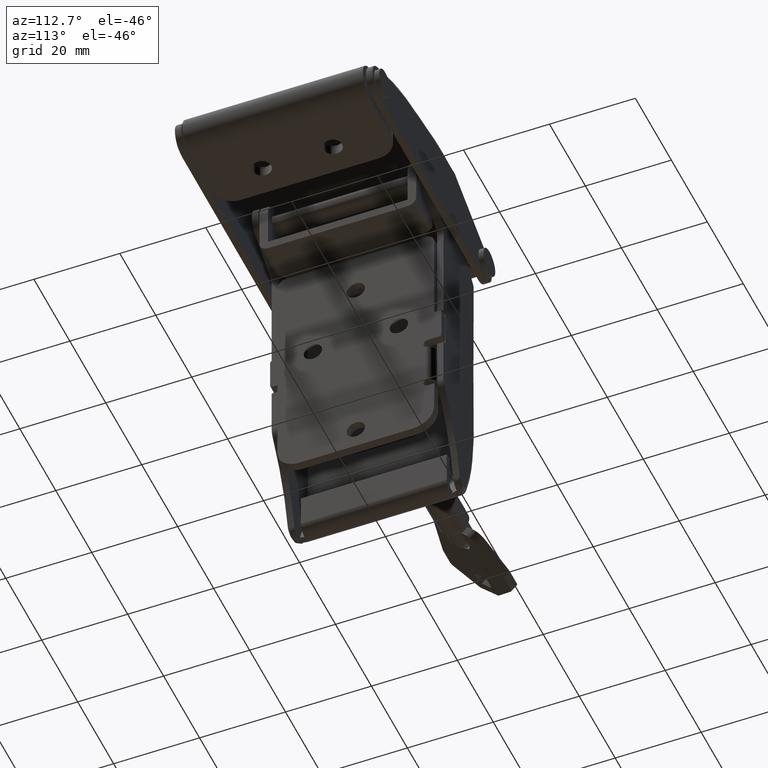
[diagram: clean part render]
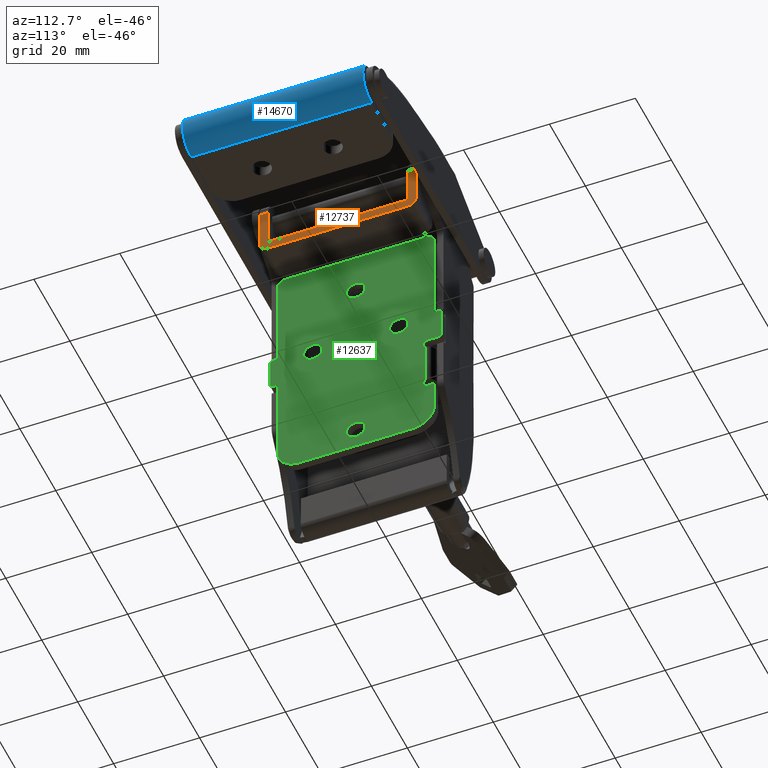
[diagram: same view with three faces highlighted in distinct colors, each labeled with its STEP entity id]
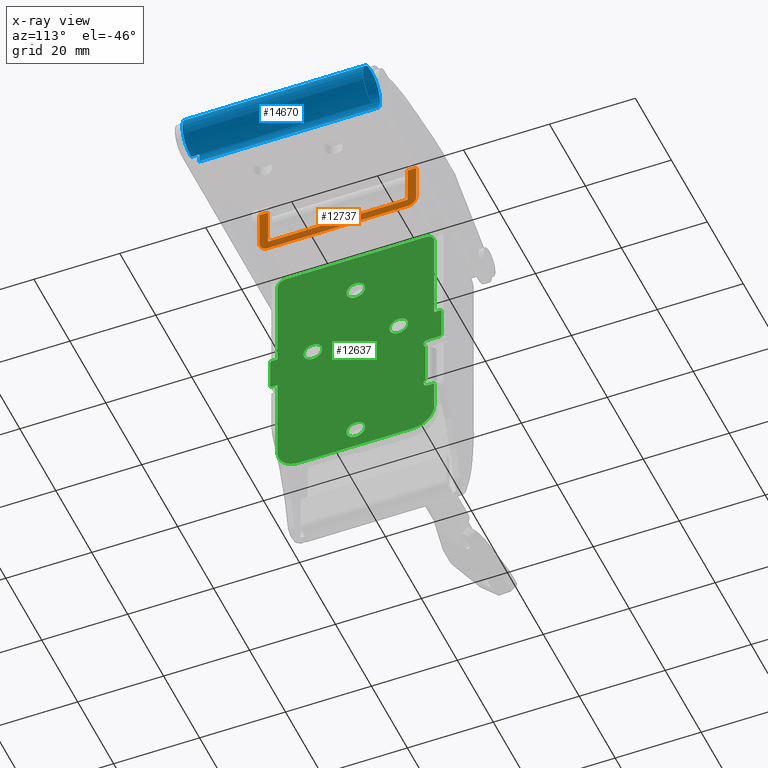
[diagram: x-ray of the same camera — body ghosted, the three highlighted faces saturated]
A machine part, auxiliary view with three faces highlighted in distinct colors.
The next image is the same camera in x-ray (body ghosted, the three faces saturated) — at least one of them is partly hidden behind the body in this view.
Their STEP definitions:

[orange] entity #12737 — the highlighted face is a freeform B-spline surface patch.
#11957=CARTESIAN_POINT('',(26.499776932377401,-16.250000000017501,6.200014666685920));
#11958=VERTEX_POINT('',#11957);
#11980=CARTESIAN_POINT('',(26.499776932377351,-16.249999999992099,-2.799992232691465));
#11981=VERTEX_POINT('',#11980);
#11982=CARTESIAN_POINT('',(26.499776932377401,-16.250000000017501,6.200014666685920));
#11983=CARTESIAN_POINT('',(26.499776932377351,-16.249999999992099,-2.799992232691465));
#11984=QUASI_UNIFORM_CURVE('',1,(#11982,#11983),.UNSPECIFIED.,.F.,.U.);
#11985=EDGE_CURVE('',#11958,#11981,#11984,.T.);
#12006=CARTESIAN_POINT('',(26.499776932377401,-18.250000000017501,6.200014666674630));
#12007=VERTEX_POINT('',#12006);
#12038=CARTESIAN_POINT('',(26.499776932377401,-18.249999999992099,-2.800006041319660));
#12039=VERTEX_POINT('',#12038);
#12045=CARTESIAN_POINT('',(26.499776932377401,-18.249999999992099,-2.800006041319660));
#12046=CARTESIAN_POINT('',(26.499776932377401,-18.250000000017501,6.200014666674630));
#12047=QUASI_UNIFORM_CURVE('',1,(#12045,#12046),.UNSPECIFIED.,.F.,.U.);
#12048=EDGE_CURVE('',#12039,#12007,#12047,.T.);
#12064=CARTESIAN_POINT('',(26.499776932377401,16.250000000007901,-4.800006041314020));
#12065=VERTEX_POINT('',#12064);
#12066=CARTESIAN_POINT('',(26.499776932377401,-16.249999999992099,-4.800006041314020));
#12067=VERTEX_POINT('',#12066);
#12068=CARTESIAN_POINT('',(26.499776932377401,16.250000000007901,-4.800006041314020));
#12069=CARTESIAN_POINT('',(26.499776932377401,-16.249999999992099,-4.800006041314020));
#12070=QUASI_UNIFORM_CURVE('',1,(#12068,#12069),.UNSPECIFIED.,.F.,.U.);
#12071=EDGE_CURVE('',#12065,#12067,#12070,.T.);
#12102=CARTESIAN_POINT('',(26.499776932377401,18.249999999982499,6.200014666777580));
#12103=VERTEX_POINT('',#12102);
#12125=CARTESIAN_POINT('',(26.499776932377401,18.250000000007901,-2.800006041308380));
#12126=VERTEX_POINT('',#12125);
#12127=CARTESIAN_POINT('',(26.499776932377401,18.249999999982499,6.200014666777580));
#12128=CARTESIAN_POINT('',(26.499776932377401,18.250000000007901,-2.800006041308380));
#12129=QUASI_UNIFORM_CURVE('',1,(#12127,#12128),.UNSPECIFIED.,.F.,.U.);
#12130=EDGE_CURVE('',#12103,#12126,#12129,.T.);
#12241=CARTESIAN_POINT('',(26.499776932377401,-16.250000000017501,6.200014666685920));
#12242=CARTESIAN_POINT('',(26.499776932377401,-18.250000000017501,6.200014666674630));
#12243=QUASI_UNIFORM_CURVE('',1,(#12241,#12242),.UNSPECIFIED.,.F.,.U.);
#12244=EDGE_CURVE('',#11958,#12007,#12243,.T.);
#12268=CARTESIAN_POINT('',(26.499776932377401,16.249999999982549,6.200014666777580));
#12269=VERTEX_POINT('',#12268);
#12292=CARTESIAN_POINT('',(26.499776932377401,18.249999999982499,6.200014666777580));
#12293=CARTESIAN_POINT('',(26.499776932377401,16.249999999982549,6.200014666777580));
#12294=QUASI_UNIFORM_CURVE('',1,(#12292,#12293),.UNSPECIFIED.,.F.,.U.);
#12295=EDGE_CURVE('',#12103,#12269,#12294,.T.);
#12315=CARTESIAN_POINT('',(26.499776932377401,16.250000000007901,-4.800006041314020));
#12316=CARTESIAN_POINT('',(26.499776932377330,16.495454468032509,-4.800205513452874));
#12317=CARTESIAN_POINT('',(26.499776932377340,16.937119388047890,-4.717648170550452));
#12318=CARTESIAN_POINT('',(26.499776932377340,17.527211696953440,-4.383386836669532));
#12319=CARTESIAN_POINT('',(26.499776932377380,17.906343755825759,-3.965100039951483));
#12320=CARTESIAN_POINT('',(26.499776932377319,18.179791323691092,-3.421637434309913));
#12321=CARTESIAN_POINT('',(26.499776932377340,18.250228573484758,-3.045479983403941));
#12322=CARTESIAN_POINT('',(26.499776932377401,18.250000000007901,-2.800006041308380));
#12323=B_SPLINE_CURVE_WITH_KNOTS('',3,(#12315,#12316,#12317,#12318,#12319,#12320,#12321,#12322),.UNSPECIFIED.,.F.,.U.,(4,1,1,1,1,4),(0.000000139750616,0.736326766771112,1.325416230115379,2.012616163606165,2.405344992653749,3.141671488682097),.UNSPECIFIED.);
#12324=EDGE_CURVE('',#12065,#12126,#12323,.T.);
#12346=CARTESIAN_POINT('',(26.499776932377351,-18.249999999992099,-2.800006041319660));
#12347=CARTESIAN_POINT('',(26.499776932377348,-18.249999999986457,-4.800006041314020));
#12348=CARTESIAN_POINT('',(26.499776932377351,-16.249999999992099,-4.800006041314020));
#12356=(BOUNDED_CURVE()B_SPLINE_CURVE(2,(#12346,#12347,#12348),.UNSPECIFIED.,.F.,.U.)CURVE()GEOMETRIC_REPRESENTATION_ITEM()QUASI_UNIFORM_CURVE()RATIONAL_B_SPLINE_CURVE((1.0,0.707106781187545,1.0))REPRESENTATION_ITEM(''));
#12357=EDGE_CURVE('',#12039,#12067,#12356,.T.);
#12710=CARTESIAN_POINT('',(26.499776932377401,-20.073174929274678,6.749465679826582));
#12711=CARTESIAN_POINT('',(26.499776932377401,20.073175908271370,6.749465679826582));
#12712=CARTESIAN_POINT('',(26.499776932377401,-20.073174929274678,-5.349457349406568));
#12713=CARTESIAN_POINT('',(26.499776932377401,20.073175908271370,-5.349457349406568));
#12714=B_SPLINE_SURFACE_WITH_KNOTS('',1,1,((#12710,#12712),(#12711,#12713)),.UNSPECIFIED.,.F.,.F.,.U.,(2,2),(2,2),(0.0,40.146350837546052),(0.0,12.098923029233150),.UNSPECIFIED.);
#12715=ORIENTED_EDGE('',*,*,#12130,.F.);
#12716=ORIENTED_EDGE('',*,*,#12295,.T.);
#12717=CARTESIAN_POINT('',(26.499776932377351,16.250000000007901,-2.799992232599805));
#12718=VERTEX_POINT('',#12717);
#12719=CARTESIAN_POINT('',(26.499776932377351,16.250000000007901,-2.799992232599805));
#12720=CARTESIAN_POINT('',(26.499776932377401,16.249999999982549,6.200014666777580));
#12721=QUASI_UNIFORM_CURVE('',1,(#12719,#12720),.UNSPECIFIED.,.F.,.U.);
#12722=EDGE_CURVE('',#12718,#12269,#12721,.T.);
#12723=ORIENTED_EDGE('',*,*,#12722,.F.);
#12724=CARTESIAN_POINT('',(26.499776932377351,-16.249999999992099,-2.799992232691465));
#12725=CARTESIAN_POINT('',(26.499776932377351,16.250000000007901,-2.799992232599805));
#12726=QUASI_UNIFORM_CURVE('',1,(#12724,#12725),.UNSPECIFIED.,.F.,.U.);
#12727=EDGE_CURVE('',#11981,#12718,#12726,.T.);
#12728=ORIENTED_EDGE('',*,*,#12727,.F.);
#12729=ORIENTED_EDGE('',*,*,#11985,.F.);
#12730=ORIENTED_EDGE('',*,*,#12244,.T.);
#12731=ORIENTED_EDGE('',*,*,#12048,.F.);
#12732=ORIENTED_EDGE('',*,*,#12357,.T.);
#12733=ORIENTED_EDGE('',*,*,#12071,.F.);
#12734=ORIENTED_EDGE('',*,*,#12324,.T.);
#12735=EDGE_LOOP('',(#12715,#12716,#12723,#12728,#12729,#12730,#12731,#12732,#12733,#12734));
#12736=FACE_OUTER_BOUND('',#12735,.T.);
#12737=ADVANCED_FACE('',(#12736),#12714,.F.);

[blue] entity #14670 — the highlighted face is a freeform B-spline surface patch.
#14483=CARTESIAN_POINT('',(57.999777542188099,20.999999999966501,-4.800000000000000));
#14484=VERTEX_POINT('',#14483);
#14491=CARTESIAN_POINT('',(53.786702655600102,20.999999999966501,-2.300000000000305));
#14492=VERTEX_POINT('',#14491);
#14498=CARTESIAN_POINT('',(57.999777542188099,20.999999999966501,-4.800000000000000));
#14499=CARTESIAN_POINT('',(58.488441247229922,20.999999999966430,-4.800259790680750));
#14500=CARTESIAN_POINT('',(59.221225385360661,20.999999999966668,-4.687066108495857));
#14501=CARTESIAN_POINT('',(60.130780935941623,20.999999999966381,-4.321866951769471));
#14502=CARTESIAN_POINT('',(60.805540346828323,20.999999999966320,-3.922476039716389));
#14503=CARTESIAN_POINT('',(61.554728215896887,20.999999999967049,-3.288545415266653));
#14504=CARTESIAN_POINT('',(62.241507695972743,20.999999999965581,-2.364942276297656));
#14505=CARTESIAN_POINT('',(62.637979728395543,20.999999999967478,-1.356361847156818));
#14506=CARTESIAN_POINT('',(62.792415254222277,20.999999999965919,-0.488230759714795));
#14507=CARTESIAN_POINT('',(62.818206189354832,20.999999999967041,0.409854823229037));
#14508=CARTESIAN_POINT('',(62.623963372544303,20.999999999966150,1.476793975174740));
#14509=CARTESIAN_POINT('',(62.148545977596392,20.999999999965869,2.487107106128572));
#14510=CARTESIAN_POINT('',(61.571956597516852,20.999999999967759,3.239938511728921));
#14511=CARTESIAN_POINT('',(60.890024904017473,20.999999999966018,3.874456724366127));
#14512=CARTESIAN_POINT('',(60.048493594247667,20.999999999965279,4.385492710382094));
#14513=CARTESIAN_POINT('',(59.163155615788810,20.999999999967208,4.680531977878813));
#14514=CARTESIAN_POINT('',(58.243673970889041,20.999999999966150,4.823138271551970));
#14515=CARTESIAN_POINT('',(57.374487896300643,20.999999999966661,4.793125169042311));
#14516=CARTESIAN_POINT('',(56.358067053799978,20.999999999967230,4.546372007525848));
#14517=CARTESIAN_POINT('',(55.527329772337907,20.999999999964182,4.153569760169432));
#14518=CARTESIAN_POINT('',(54.783215534406082,20.999999999967791,3.593244219305001));
#14519=CARTESIAN_POINT('',(54.277725428919162,20.999999999965901,3.058745677541966));
#14520=CARTESIAN_POINT('',(53.829089633709572,20.999999999966700,2.416712725435176));
#14521=CARTESIAN_POINT('',(53.428629869571573,20.999999999966409,1.592418424392871));
#14522=CARTESIAN_POINT('',(53.202079109261902,20.999999999966501,0.616744236194651));
#14523=CARTESIAN_POINT('',(53.189279920322051,20.999999999966590,-0.282384199321153));
#14524=CARTESIAN_POINT('',(53.322017300109898,20.999999999966349,-1.236286494171782));
#14525=CARTESIAN_POINT('',(53.560154528166763,20.999999999966811,-1.885503505337698));
#14526=CARTESIAN_POINT('',(53.786702655600102,20.999999999966501,-2.300000000000305));
#14527=B_SPLINE_CURVE_WITH_KNOTS('',3,(#14498,#14499,#14500,#14501,#14502,#14503,#14504,#14505,#14506,#14507,#14508,#14509,#14510,#14511,#14512,#14513,#14514,#14515,#14516,#14517,#14518,#14519,#14520,#14521,#14522,#14523,#14524,#14525,#14526),.UNSPECIFIED.,.F.,.U.,(4,1,1,1,1,1,1,1,1,1,1,1,1,1,1,1,1,1,1,1,1,1,1,1,1,1,4),(0.000000524812897,1.465886391824807,2.198849500608819,2.931814447163621,3.811367117099891,5.130713278527352,6.352233564327172,7.036329069591627,7.769275273883210,9.039758025547751,10.261375665538900,11.092070848956039,11.873905838504051,13.046530218020420,14.023814986310160,14.659055397362030,15.831806321512550,16.613644111493890,17.786392944965069,18.568217358955138,19.398793670355811,19.985186396339849,20.913595109809020,22.135212747623910,22.965911536351989,23.601150273834531,25.018159323101699),.UNSPECIFIED.);
#14528=EDGE_CURVE('',#14484,#14492,#14527,.T.);
#14599=CARTESIAN_POINT('',(57.957890171795910,-22.049999999992579,-4.799817230708021));
#14600=CARTESIAN_POINT('',(57.957890171795910,22.076249999965480,-4.799817230708021));
#14601=CARTESIAN_POINT('',(63.746146530018088,-22.049999999992572,-4.850330578685241));
#14602=CARTESIAN_POINT('',(63.746146530018088,22.076249999965480,-4.850330578685241));
#14603=CARTESIAN_POINT('',(62.724410174821358,-22.049999999992579,0.847258217225942));
#14604=CARTESIAN_POINT('',(62.724410174821358,22.076249999965480,0.847258217225942));
#14605=CARTESIAN_POINT('',(61.702673819624636,-22.049999999992572,6.544847013137116));
#14606=CARTESIAN_POINT('',(61.702673819624636,22.076249999965480,6.544847013137116));
#14607=CARTESIAN_POINT('',(56.292653885476710,-22.049999999992579,4.486170841675140));
#14608=CARTESIAN_POINT('',(56.292653885476710,22.076249999965480,4.486170841675140));
#14609=CARTESIAN_POINT('',(50.882633951328792,-22.049999999992572,2.427494670213159));
#14610=CARTESIAN_POINT('',(50.882633951328792,22.076249999965480,2.427494670213159));
#14611=CARTESIAN_POINT('',(53.907104753288472,-22.049999999992579,-2.507993110636541));
#14612=CARTESIAN_POINT('',(53.907104753288472,22.076249999965480,-2.507993110636541));
#14620=(BOUNDED_SURFACE()B_SPLINE_SURFACE(1,2,((#14599,#14601,#14603,#14605,#14607,#14609,#14611),(#14600,#14602,#14604,#14606,#14608,#14610,#14612)),.UNSPECIFIED.,.F.,.F.,.U.)B_SPLINE_SURFACE_WITH_KNOTS((2,2),(3,2,2,3),(0.0,44.126249999958070),(0.0,9.021194419456636,18.042388838913269,27.063583258369910),.UNSPECIFIED.)GEOMETRIC_REPRESENTATION_ITEM()RATIONAL_B_SPLINE_SURFACE(((1.0,0.638320090924328,1.0,0.638320090924328,1.0,0.638320090924328,1.0),(1.0,0.638320090924328,1.0,0.638320090924328,1.0,0.638320090924328,1.0)))REPRESENTATION_ITEM('')SURFACE());
#14621=CARTESIAN_POINT('',(53.786700400229698,-20.999999999953499,-2.299995868790350));
#14622=VERTEX_POINT('',#14621);
#14623=CARTESIAN_POINT('',(53.786700400229698,-20.999999999953499,-2.299995868790350));
#14624=CARTESIAN_POINT('',(53.786702655600102,20.999999999966501,-2.300000000000305));
#14625=QUASI_UNIFORM_CURVE('',1,(#14623,#14624),.UNSPECIFIED.,.F.,.U.);
#14626=EDGE_CURVE('',#14622,#14492,#14625,.T.);
#14627=ORIENTED_EDGE('',*,*,#14626,.F.);
#14628=CARTESIAN_POINT('',(57.999777542188099,-20.999999999939401,-4.800000000000000));
#14629=VERTEX_POINT('',#14628);
#14630=CARTESIAN_POINT('',(57.999777542188099,-20.999999999939401,-4.800000000000000));
#14631=CARTESIAN_POINT('',(58.276656849146157,-20.999999999939391,-4.800012719518666));
#14632=CARTESIAN_POINT('',(58.895591434198899,-20.999999999939771,-4.746343417655633));
#14633=CARTESIAN_POINT('',(59.729968058398363,-20.999999999941029,-4.506456376371203));
#14634=CARTESIAN_POINT('',(60.621493229074929,-20.999999999943491,-4.061266354696490));
#14635=CARTESIAN_POINT('',(61.344077479212537,-20.999999999947040,-3.492610666930328));
#14636=CARTESIAN_POINT('',(61.940761621136758,-20.999999999950418,-2.777258984338680));
#14637=CARTESIAN_POINT('',(62.347258484470117,-20.999999999955140,-2.087352179235546));
#14638=CARTESIAN_POINT('',(62.691210986564990,-20.999999999959261,-1.186176836090974));
#14639=CARTESIAN_POINT('',(62.850963923744857,-20.999999999966139,-0.096977482799562));
#14640=CARTESIAN_POINT('',(62.731403516853099,-20.999999999972118,0.995929544976656));
#14641=CARTESIAN_POINT('',(62.389380188633780,-20.999999999977980,2.036588497675843));
#14642=CARTESIAN_POINT('',(61.860382030123830,-20.999999999983039,2.926333447546984));
#14643=CARTESIAN_POINT('',(61.164609470554858,-20.999999999987089,3.642864101141921));
#14644=CARTESIAN_POINT('',(60.407927971969102,-20.999999999989679,4.185466128600929));
#14645=CARTESIAN_POINT('',(59.634596650246671,-20.999999999992369,4.543638888107298));
#14646=CARTESIAN_POINT('',(58.747230528473473,-20.999999999993129,4.765863574440225));
#14647=CARTESIAN_POINT('',(57.767944168889002,-20.999999999993548,4.836965346751175));
#14648=CARTESIAN_POINT('',(56.680552378922947,-20.999999999994031,4.665208205787446));
#14649=CARTESIAN_POINT('',(55.669525117969549,-20.999999999988130,4.236445110399850));
#14650=CARTESIAN_POINT('',(54.985367714083132,-20.999999999984841,3.758538015630997));
#14651=CARTESIAN_POINT('',(54.392778712634957,-20.999999999985651,3.198375405404606));
#14652=CARTESIAN_POINT('',(53.933353024956091,-20.999999999980819,2.601157354603931));
#14653=CARTESIAN_POINT('',(53.539366379368737,-20.999999999976879,1.830195750345745));
#14654=CARTESIAN_POINT('',(53.280315895940468,-20.999999999972271,1.020472153733905));
#14655=CARTESIAN_POINT('',(53.173382124089940,-20.999999999967251,0.142859100092282));
#14656=CARTESIAN_POINT('',(53.251041066919122,-20.999999999961020,-1.015363899543619));
#14657=CARTESIAN_POINT('',(53.520985495483082,-20.999999999956000,-1.814052290256780));
#14658=CARTESIAN_POINT('',(53.786700400229698,-20.999999999953499,-2.299995868790350));
#14659=B_SPLINE_CURVE_WITH_KNOTS('',3,(#14630,#14631,#14632,#14633,#14634,#14635,#14636,#14637,#14638,#14639,#14640,#14641,#14642,#14643,#14644,#14645,#14646,#14647,#14648,#14649,#14650,#14651,#14652,#14653,#14654,#14655,#14656,#14657,#14658),.UNSPECIFIED.,.F.,.U.,(4,1,1,1,1,1,1,1,1,1,1,1,1,1,1,1,1,1,1,1,1,1,1,1,1,1,4),(0.000000522990046,0.830646403101451,1.856788364116760,2.589759640581413,3.811366398473624,4.593209124701325,5.375041882819112,6.205731624476215,7.476105563690126,8.648849370826099,9.479536146331677,10.750003624029590,11.727288807107470,12.460272562617790,13.535203398016300,14.268151463677240,15.196566734314990,16.467029376999971,17.542049524029181,18.470492016324570,18.959018294966501,19.985182635954899,20.718137133023330,21.548833395938459,22.526119120207639,23.356800590405179,25.018154616127781),.UNSPECIFIED.);
#14660=EDGE_CURVE('',#14629,#14622,#14659,.T.);
#14661=ORIENTED_EDGE('',*,*,#14660,.F.);
#14662=CARTESIAN_POINT('',(57.999777542188099,-20.999999999939401,-4.800000000000000));
#14663=CARTESIAN_POINT('',(57.999777542188099,20.999999999966501,-4.800000000000000));
#14664=QUASI_UNIFORM_CURVE('',1,(#14662,#14663),.UNSPECIFIED.,.F.,.U.);
#14665=EDGE_CURVE('',#14629,#14484,#14664,.T.);
#14666=ORIENTED_EDGE('',*,*,#14665,.T.);
#14667=ORIENTED_EDGE('',*,*,#14528,.T.);
#14668=EDGE_LOOP('',(#14627,#14661,#14666,#14667));
#14669=FACE_OUTER_BOUND('',#14668,.T.);
#14670=ADVANCED_FACE('',(#14669),#14620,.T.);

[green] entity #12637 — the highlighted face is a freeform B-spline surface patch.
#10949=CARTESIAN_POINT('',(16.499774046851549,1.630269E-010,-59.949992232788098));
#10950=VERTEX_POINT('',#10949);
#10951=CARTESIAN_POINT('',(16.499774046851559,2.143372267680425,-57.968679288715123));
#10952=VERTEX_POINT('',#10951);
#10953=CARTESIAN_POINT('',(16.499774046851549,1.630269E-010,-59.949992232788098));
#10954=CARTESIAN_POINT('',(16.499774046851545,1.987439557123854,-59.949992232788091));
#10955=CARTESIAN_POINT('',(16.499774046851552,2.143372267680425,-57.968679288715116));
#10963=(BOUNDED_CURVE()B_SPLINE_CURVE(2,(#10953,#10954,#10955),.UNSPECIFIED.,.F.,.U.)B_SPLINE_CURVE_WITH_KNOTS((3,3),(0.0,0.236331300623797),.UNSPECIFIED.)CURVE()GEOMETRIC_REPRESENTATION_ITEM()RATIONAL_B_SPLINE_CURVE((1.0,0.723120658615706,0.969723356153096))REPRESENTATION_ITEM(''));
#10964=EDGE_CURVE('',#10950,#10952,#10963,.T.);
#11005=CARTESIAN_POINT('',(16.499774046851549,-2.143372267354371,-57.631305176861062));
#11006=VERTEX_POINT('',#11005);
#11012=CARTESIAN_POINT('',(16.499774046851549,-2.143372267354372,-57.631305176861062));
#11013=CARTESIAN_POINT('',(16.499774046851556,-2.149999999836974,-57.715518502665269));
#11014=CARTESIAN_POINT('',(16.499774046851549,-2.149999999836973,-57.799992232788092));
#11015=CARTESIAN_POINT('',(16.499774046851559,-2.149999999836973,-59.949992232788091));
#11016=CARTESIAN_POINT('',(16.499774046851549,1.630269E-010,-59.949992232788098));
#11024=(BOUNDED_CURVE()B_SPLINE_CURVE(2,(#11012,#11013,#11014,#11015,#11016),.UNSPECIFIED.,.F.,.U.)B_SPLINE_CURVE_WITH_KNOTS((3,2,3),(0.736331300623796,0.750000000000000,1.0),.UNSPECIFIED.)CURVE()GEOMETRIC_REPRESENTATION_ITEM()RATIONAL_B_SPLINE_CURVE((0.969723356153094,0.983986122570841,1.0,0.707106781186547,1.0))REPRESENTATION_ITEM(''));
#11025=EDGE_CURVE('',#11006,#10950,#11024,.T.);
#11048=CARTESIAN_POINT('',(16.499774046851549,1.630269E-010,-55.649992232788087));
#11049=VERTEX_POINT('',#11048);
#11050=CARTESIAN_POINT('',(16.499774046851552,2.143372267680426,-57.968679288715109));
#11051=CARTESIAN_POINT('',(16.499774046851559,2.150000000163027,-57.884465962910923));
#11052=CARTESIAN_POINT('',(16.499774046851549,2.150000000163027,-57.799992232788092));
#11053=CARTESIAN_POINT('',(16.499774046851559,2.150000000163026,-55.649992232788094));
#11054=CARTESIAN_POINT('',(16.499774046851549,1.630269E-010,-55.649992232788087));
#11062=(BOUNDED_CURVE()B_SPLINE_CURVE(2,(#11050,#11051,#11052,#11053,#11054),.UNSPECIFIED.,.F.,.U.)B_SPLINE_CURVE_WITH_KNOTS((3,2,3),(0.236331300623797,0.250000000000000,0.500000000000000),.UNSPECIFIED.)CURVE()GEOMETRIC_REPRESENTATION_ITEM()RATIONAL_B_SPLINE_CURVE((0.969723356153097,0.983986122570842,1.0,0.707106781186547,1.0))REPRESENTATION_ITEM(''));
#11063=EDGE_CURVE('',#10952,#11049,#11062,.T.);
#11065=CARTESIAN_POINT('',(16.499774046851549,1.630269E-010,-55.649992232788087));
#11066=CARTESIAN_POINT('',(16.499774046851549,-1.987439556797797,-55.649992232788094));
#11067=CARTESIAN_POINT('',(16.499774046851556,-2.143372267354371,-57.631305176861062));
#11075=(BOUNDED_CURVE()B_SPLINE_CURVE(2,(#11065,#11066,#11067),.UNSPECIFIED.,.F.,.U.)B_SPLINE_CURVE_WITH_KNOTS((3,3),(0.500000000000000,0.736331300623796),.UNSPECIFIED.)CURVE()GEOMETRIC_REPRESENTATION_ITEM()RATIONAL_B_SPLINE_CURVE((1.0,0.723120658615706,0.969723356153095))REPRESENTATION_ITEM(''));
#11076=EDGE_CURVE('',#11049,#11006,#11075,.T.);
#11131=CARTESIAN_POINT('',(16.499774046851549,1.125784E-010,-16.949992232788599));
#11132=VERTEX_POINT('',#11131);
#11133=CARTESIAN_POINT('',(16.499774046851549,2.143372267629977,-14.968679288715620));
#11134=VERTEX_POINT('',#11133);
#11135=CARTESIAN_POINT('',(16.499774046851549,1.125784E-010,-16.949992232788599));
#11136=CARTESIAN_POINT('',(16.499774046851556,1.987439557073408,-16.949992232788606));
#11137=CARTESIAN_POINT('',(16.499774046851552,2.143372267629977,-14.968679288715620));
#11145=(BOUNDED_CURVE()B_SPLINE_CURVE(2,(#11135,#11136,#11137),.UNSPECIFIED.,.F.,.U.)B_SPLINE_CURVE_WITH_KNOTS((3,3),(0.0,0.236331300623797),.UNSPECIFIED.)CURVE()GEOMETRIC_REPRESENTATION_ITEM()RATIONAL_B_SPLINE_CURVE((1.0,0.723120658615706,0.969723356153096))REPRESENTATION_ITEM(''));
#11146=EDGE_CURVE('',#11132,#11134,#11145,.T.);
#11187=CARTESIAN_POINT('',(16.499774046851549,-2.143372267404820,-14.631305176861581));
#11188=VERTEX_POINT('',#11187);
#11194=CARTESIAN_POINT('',(16.499774046851549,-2.143372267404820,-14.631305176861588));
#11195=CARTESIAN_POINT('',(16.499774046851549,-2.149999999887422,-14.715518502665775));
#11196=CARTESIAN_POINT('',(16.499774046851549,-2.149999999887422,-14.799992232788600));
#11197=CARTESIAN_POINT('',(16.499774046851559,-2.149999999887422,-16.949992232788603));
#11198=CARTESIAN_POINT('',(16.499774046851549,1.125784E-010,-16.949992232788599));
#11206=(BOUNDED_CURVE()B_SPLINE_CURVE(2,(#11194,#11195,#11196,#11197,#11198),.UNSPECIFIED.,.F.,.U.)B_SPLINE_CURVE_WITH_KNOTS((3,2,3),(0.736331300623797,0.750000000000000,1.0),.UNSPECIFIED.)CURVE()GEOMETRIC_REPRESENTATION_ITEM()RATIONAL_B_SPLINE_CURVE((0.969723356153096,0.983986122570842,1.0,0.707106781186547,1.0))REPRESENTATION_ITEM(''));
#11207=EDGE_CURVE('',#11188,#11132,#11206,.T.);
#11230=CARTESIAN_POINT('',(16.499774046851549,1.125784E-010,-12.649992232788600));
#11231=VERTEX_POINT('',#11230);
#11232=CARTESIAN_POINT('',(16.499774046851552,2.143372267629977,-14.968679288715620));
#11233=CARTESIAN_POINT('',(16.499774046851552,2.150000000112579,-14.884465962911428));
#11234=CARTESIAN_POINT('',(16.499774046851549,2.150000000112578,-14.799992232788600));
#11235=CARTESIAN_POINT('',(16.499774046851559,2.150000000112578,-12.649992232788597));
#11236=CARTESIAN_POINT('',(16.499774046851549,1.125784E-010,-12.649992232788600));
#11244=(BOUNDED_CURVE()B_SPLINE_CURVE(2,(#11232,#11233,#11234,#11235,#11236),.UNSPECIFIED.,.F.,.U.)B_SPLINE_CURVE_WITH_KNOTS((3,2,3),(0.236331300623797,0.250000000000000,0.500000000000000),.UNSPECIFIED.)CURVE()GEOMETRIC_REPRESENTATION_ITEM()RATIONAL_B_SPLINE_CURVE((0.969723356153096,0.983986122570842,1.0,0.707106781186547,1.0))REPRESENTATION_ITEM(''));
#11245=EDGE_CURVE('',#11134,#11231,#11244,.T.);
#11247=CARTESIAN_POINT('',(16.499774046851549,1.125784E-010,-12.649992232788600));
#11248=CARTESIAN_POINT('',(16.499774046851556,-1.987439556848252,-12.649992232788598));
#11249=CARTESIAN_POINT('',(16.499774046851552,-2.143372267404820,-14.631305176861579));
#11257=(BOUNDED_CURVE()B_SPLINE_CURVE(2,(#11247,#11248,#11249),.UNSPECIFIED.,.F.,.U.)B_SPLINE_CURVE_WITH_KNOTS((3,3),(0.500000000000000,0.736331300623797),.UNSPECIFIED.)CURVE()GEOMETRIC_REPRESENTATION_ITEM()RATIONAL_B_SPLINE_CURVE((1.0,0.723120658615706,0.969723356153096))REPRESENTATION_ITEM(''));
#11258=EDGE_CURVE('',#11231,#11188,#11257,.T.);
#11316=CARTESIAN_POINT('',(16.499774046851549,7.856627732566642,-29.631305176661929));
#11317=VERTEX_POINT('',#11316);
#11323=CARTESIAN_POINT('',(16.499774046851549,10.000000000084039,-31.949992232588951));
#11324=VERTEX_POINT('',#11323);
#11325=CARTESIAN_POINT('',(16.499774046851556,7.856627732566643,-29.631305176661932));
#11326=CARTESIAN_POINT('',(16.499774046851549,7.850000000084041,-29.715518502466125));
#11327=CARTESIAN_POINT('',(16.499774046851549,7.850000000084040,-29.799992232588949));
#11328=CARTESIAN_POINT('',(16.499774046851559,7.850000000084041,-31.949992232588958));
#11329=CARTESIAN_POINT('',(16.499774046851549,10.000000000084039,-31.949992232588951));
#11337=(BOUNDED_CURVE()B_SPLINE_CURVE(2,(#11325,#11326,#11327,#11328,#11329),.UNSPECIFIED.,.F.,.U.)B_SPLINE_CURVE_WITH_KNOTS((3,2,3),(0.736331300623797,0.750000000000000,1.0),.UNSPECIFIED.)CURVE()GEOMETRIC_REPRESENTATION_ITEM()RATIONAL_B_SPLINE_CURVE((0.969723356153096,0.983986122570842,1.0,0.707106781186547,1.0))REPRESENTATION_ITEM(''));
#11338=EDGE_CURVE('',#11317,#11324,#11337,.T.);
#11340=CARTESIAN_POINT('',(16.499774046851549,12.143372267601441,-29.968679288515968));
#11341=VERTEX_POINT('',#11340);
#11342=CARTESIAN_POINT('',(16.499774046851549,10.000000000084039,-31.949992232588951));
#11343=CARTESIAN_POINT('',(16.499774046851556,11.987439557044871,-31.949992232588954));
#11344=CARTESIAN_POINT('',(16.499774046851552,12.143372267601439,-29.968679288515965));
#11352=(BOUNDED_CURVE()B_SPLINE_CURVE(2,(#11342,#11343,#11344),.UNSPECIFIED.,.F.,.U.)B_SPLINE_CURVE_WITH_KNOTS((3,3),(0.0,0.236331300623797),.UNSPECIFIED.)CURVE()GEOMETRIC_REPRESENTATION_ITEM()RATIONAL_B_SPLINE_CURVE((1.0,0.723120658615706,0.969723356153096))REPRESENTATION_ITEM(''));
#11353=EDGE_CURVE('',#11324,#11341,#11352,.T.);
#11383=CARTESIAN_POINT('',(16.499774046851549,10.000000000084039,-27.649992232588950));
#11384=VERTEX_POINT('',#11383);
#11385=CARTESIAN_POINT('',(16.499774046851552,12.143372267601434,-29.968679288515965));
#11386=CARTESIAN_POINT('',(16.499774046851556,12.150000000084038,-29.884465962711779));
#11387=CARTESIAN_POINT('',(16.499774046851549,12.150000000084040,-29.799992232588949));
#11388=CARTESIAN_POINT('',(16.499774046851559,12.150000000084042,-27.649992232588946));
#11389=CARTESIAN_POINT('',(16.499774046851549,10.000000000084039,-27.649992232588950));
#11397=(BOUNDED_CURVE()B_SPLINE_CURVE(2,(#11385,#11386,#11387,#11388,#11389),.UNSPECIFIED.,.F.,.U.)B_SPLINE_CURVE_WITH_KNOTS((3,2,3),(0.236331300623797,0.250000000000000,0.500000000000000),.UNSPECIFIED.)CURVE()GEOMETRIC_REPRESENTATION_ITEM()RATIONAL_B_SPLINE_CURVE((0.969723356153096,0.983986122570842,1.0,0.707106781186547,1.0))REPRESENTATION_ITEM(''));
#11398=EDGE_CURVE('',#11341,#11384,#11397,.T.);
#11400=CARTESIAN_POINT('',(16.499774046851549,10.000000000084039,-27.649992232588950));
#11401=CARTESIAN_POINT('',(16.499774046851552,8.012560443123208,-27.649992232588954));
#11402=CARTESIAN_POINT('',(16.499774046851545,7.856627732566642,-29.631305176661936));
#11410=(BOUNDED_CURVE()B_SPLINE_CURVE(2,(#11400,#11401,#11402),.UNSPECIFIED.,.F.,.U.)B_SPLINE_CURVE_WITH_KNOTS((3,3),(0.500000000000000,0.736331300623797),.UNSPECIFIED.)CURVE()GEOMETRIC_REPRESENTATION_ITEM()RATIONAL_B_SPLINE_CURVE((1.0,0.723120658615705,0.969723356153097))REPRESENTATION_ITEM(''));
#11411=EDGE_CURVE('',#11384,#11317,#11410,.T.);
#11440=CARTESIAN_POINT('',(16.499774046851559,-12.143372267433360,-29.631305176718332));
#11441=VERTEX_POINT('',#11440);
#11447=CARTESIAN_POINT('',(16.499774046851549,-9.999999999915961,-31.949992232645350));
#11448=VERTEX_POINT('',#11447);
#11449=CARTESIAN_POINT('',(16.499774046851556,-12.143372267433358,-29.631305176718332));
#11450=CARTESIAN_POINT('',(16.499774046851552,-12.149999999915961,-29.715518502522524));
#11451=CARTESIAN_POINT('',(16.499774046851549,-12.149999999915959,-29.799992232645351));
#11452=CARTESIAN_POINT('',(16.499774046851559,-12.149999999915961,-31.949992232645357));
#11453=CARTESIAN_POINT('',(16.499774046851549,-9.999999999915961,-31.949992232645350));
#11461=(BOUNDED_CURVE()B_SPLINE_CURVE(2,(#11449,#11450,#11451,#11452,#11453),.UNSPECIFIED.,.F.,.U.)B_SPLINE_CURVE_WITH_KNOTS((3,2,3),(0.736331300623797,0.750000000000000,1.0),.UNSPECIFIED.)CURVE()GEOMETRIC_REPRESENTATION_ITEM()RATIONAL_B_SPLINE_CURVE((0.969723356153095,0.983986122570842,1.0,0.707106781186547,1.0))REPRESENTATION_ITEM(''));
#11462=EDGE_CURVE('',#11441,#11448,#11461,.T.);
#11464=CARTESIAN_POINT('',(16.499774046851549,-7.856627732398561,-29.968679288572371));
#11465=VERTEX_POINT('',#11464);
#11466=CARTESIAN_POINT('',(16.499774046851549,-9.999999999915961,-31.949992232645350));
#11467=CARTESIAN_POINT('',(16.499774046851556,-8.012560442955131,-31.949992232645350));
#11468=CARTESIAN_POINT('',(16.499774046851552,-7.856627732398560,-29.968679288572375));
#11476=(BOUNDED_CURVE()B_SPLINE_CURVE(2,(#11466,#11467,#11468),.UNSPECIFIED.,.F.,.U.)B_SPLINE_CURVE_WITH_KNOTS((3,3),(0.0,0.236331300623797),.UNSPECIFIED.)CURVE()GEOMETRIC_REPRESENTATION_ITEM()RATIONAL_B_SPLINE_CURVE((1.0,0.723120658615706,0.969723356153096))REPRESENTATION_ITEM(''));
#11477=EDGE_CURVE('',#11448,#11465,#11476,.T.);
#11507=CARTESIAN_POINT('',(16.499774046851549,-9.999999999915961,-27.649992232645349));
#11508=VERTEX_POINT('',#11507);
#11509=CARTESIAN_POINT('',(16.499774046851549,-7.856627732398560,-29.968679288572368));
#11510=CARTESIAN_POINT('',(16.499774046851549,-7.849999999915958,-29.884465962768171));
#11511=CARTESIAN_POINT('',(16.499774046851549,-7.849999999915959,-29.799992232645351));
#11512=CARTESIAN_POINT('',(16.499774046851559,-7.849999999915960,-27.649992232645360));
#11513=CARTESIAN_POINT('',(16.499774046851549,-9.999999999915961,-27.649992232645349));
#11521=(BOUNDED_CURVE()B_SPLINE_CURVE(2,(#11509,#11510,#11511,#11512,#11513),.UNSPECIFIED.,.F.,.U.)B_SPLINE_CURVE_WITH_KNOTS((3,2,3),(0.236331300623797,0.250000000000000,0.500000000000000),.UNSPECIFIED.)CURVE()GEOMETRIC_REPRESENTATION_ITEM()RATIONAL_B_SPLINE_CURVE((0.969723356153096,0.983986122570842,1.0,0.707106781186547,1.0))REPRESENTATION_ITEM(''));
#11522=EDGE_CURVE('',#11465,#11508,#11521,.T.);
#11524=CARTESIAN_POINT('',(16.499774046851549,-9.999999999915961,-27.649992232645349));
#11525=CARTESIAN_POINT('',(16.499774046851552,-11.987439556876785,-27.649992232645364));
#11526=CARTESIAN_POINT('',(16.499774046851549,-12.143372267433360,-29.631305176718332));
#11534=(BOUNDED_CURVE()B_SPLINE_CURVE(2,(#11524,#11525,#11526),.UNSPECIFIED.,.F.,.U.)B_SPLINE_CURVE_WITH_KNOTS((3,3),(0.500000000000000,0.736331300623797),.UNSPECIFIED.)CURVE()GEOMETRIC_REPRESENTATION_ITEM()RATIONAL_B_SPLINE_CURVE((1.0,0.723120658615706,0.969723356153095))REPRESENTATION_ITEM(''));
#11535=EDGE_CURVE('',#11508,#11441,#11534,.T.);
#11914=CARTESIAN_POINT('',(16.499774046851599,-16.249999999788500,-4.799992232599810));
#11915=VERTEX_POINT('',#11914);
#11921=CARTESIAN_POINT('',(16.499774046851599,16.250000000211500,-4.799992232599810));
#11922=VERTEX_POINT('',#11921);
#11923=CARTESIAN_POINT('',(16.499774046851599,-16.249999999788500,-4.799992232599810));
#11924=CARTESIAN_POINT('',(16.499774046851599,16.250000000211500,-4.799992232599810));
#11925=QUASI_UNIFORM_CURVE('',1,(#11923,#11924),.UNSPECIFIED.,.F.,.U.);
#11926=EDGE_CURVE('',#11915,#11922,#11925,.T.);
#12365=CARTESIAN_POINT('',(16.499774046851599,-21.943004922477680,-65.697106618644000));
#12366=CARTESIAN_POINT('',(16.499774046851599,21.943005993098229,-65.697106618644000));
#12367=CARTESIAN_POINT('',(16.499774046851599,-21.943004922477680,-1.902890099588219));
#12368=CARTESIAN_POINT('',(16.499774046851599,21.943005993098229,-1.902890099588219));
#12369=B_SPLINE_SURFACE_WITH_KNOTS('',1,1,((#12365,#12367),(#12366,#12368)),.UNSPECIFIED.,.F.,.F.,.U.,(2,2),(2,2),(0.0,43.886010915575923),(0.0,63.794216519055780),.UNSPECIFIED.);
#12370=CARTESIAN_POINT('',(16.499774046851549,16.250000000152500,-48.933966829119903));
#12371=VERTEX_POINT('',#12370);
#12372=CARTESIAN_POINT('',(16.499774046851549,16.750000000146901,-50.799992232914903));
#12373=VERTEX_POINT('',#12372);
#12374=CARTESIAN_POINT('',(16.499774046851549,16.250000000152500,-48.933966829119903));
#12375=CARTESIAN_POINT('',(16.499774046851559,16.143647675286100,-48.995235487695588));
#12376=CARTESIAN_POINT('',(16.499774046851581,16.006803772084751,-49.112553335175733));
#12377=CARTESIAN_POINT('',(16.499774046851531,15.845194405741619,-49.350129795998463));
#12378=CARTESIAN_POINT('',(16.499774046851549,15.759501204350350,-49.583626787200998));
#12379=CARTESIAN_POINT('',(16.499774046851570,15.739739852572900,-49.885246510836510));
#12380=CARTESIAN_POINT('',(16.499774046851542,15.794215844220149,-50.127907055397841));
#12381=CARTESIAN_POINT('',(16.499774046851609,15.917260536636681,-50.372321952272202));
#12382=CARTESIAN_POINT('',(16.499774046851520,16.079705633124149,-50.560669201332082));
#12383=CARTESIAN_POINT('',(16.499774046851570,16.368417257349311,-50.746805232999698));
#12384=CARTESIAN_POINT('',(16.499774046851559,16.599961080855579,-50.800243950246319));
#12385=CARTESIAN_POINT('',(16.499774046851549,16.750000000146901,-50.799992232914903));
#12386=B_SPLINE_CURVE_WITH_KNOTS('',3,(#12374,#12375,#12376,#12377,#12378,#12379,#12380,#12381,#12382,#12383,#12384,#12385),.UNSPECIFIED.,.F.,.U.,(4,1,1,1,1,1,1,1,1,4),(0.000000562628284,0.368179991986540,0.531814585816853,0.859109741120983,1.104582043609020,1.431788850161771,1.595426706972322,1.922724903766724,2.168196092283113,2.618176292731659),.UNSPECIFIED.);
#12387=EDGE_CURVE('',#12371,#12373,#12386,.T.);
#12388=ORIENTED_EDGE('',*,*,#12387,.F.);
#12389=CARTESIAN_POINT('',(16.499774046851549,16.250000000183199,-38.666017636687947));
#12390=VERTEX_POINT('',#12389);
#12391=CARTESIAN_POINT('',(16.499774046851549,16.250000000152500,-48.933966829119903));
#12392=CARTESIAN_POINT('',(16.499774046851549,16.250000000183199,-38.666017636687947));
#12393=QUASI_UNIFORM_CURVE('',1,(#12391,#12392),.UNSPECIFIED.,.F.,.U.);
#12394=EDGE_CURVE('',#12371,#12390,#12393,.T.);
#12395=ORIENTED_EDGE('',*,*,#12394,.T.);
#12396=CARTESIAN_POINT('',(16.499774046851549,16.750000000188798,-36.799992232898802));
#12397=VERTEX_POINT('',#12396);
#12398=CARTESIAN_POINT('',(16.499774046851549,16.750000000188798,-36.799992232898802));
#12399=CARTESIAN_POINT('',(16.499774046851570,16.627260555809830,-36.799872855041052));
#12400=CARTESIAN_POINT('',(16.499774046851531,16.450094103785851,-36.833057252908063));
#12401=CARTESIAN_POINT('',(16.499774046851570,16.191345738555690,-36.957996305106633));
#12402=CARTESIAN_POINT('',(16.499774046851549,16.000385919659230,-37.117364826966103));
#12403=CARTESIAN_POINT('',(16.499774046851520,15.832466493330919,-37.368693820451000));
#12404=CARTESIAN_POINT('',(16.499774046851591,15.741785461687121,-37.658851896080471));
#12405=CARTESIAN_POINT('',(16.499774046851549,15.749303175714010,-37.962778811310798));
#12406=CARTESIAN_POINT('',(16.499774046851570,15.837576677934120,-38.237472843462257));
#12407=CARTESIAN_POINT('',(16.499774046851471,15.995342026428720,-38.479965362110207));
#12408=CARTESIAN_POINT('',(16.499774046851648,16.155500596187430,-38.611533125385861));
#12409=CARTESIAN_POINT('',(16.499774046851549,16.250000000183199,-38.666017636687947));
#12410=B_SPLINE_CURVE_WITH_KNOTS('',3,(#12398,#12399,#12400,#12401,#12402,#12403,#12404,#12405,#12406,#12407,#12408,#12409),.UNSPECIFIED.,.F.,.U.,(4,1,1,1,1,1,1,1,1,4),(0.000000562636937,0.368179991992776,0.531814585821995,0.859109741124140,1.104582043610653,1.431788850161185,1.759078268835571,2.004547324339844,2.290936216713408,2.618176292727617),.UNSPECIFIED.);
#12411=EDGE_CURVE('',#12397,#12390,#12410,.T.);
#12412=ORIENTED_EDGE('',*,*,#12411,.F.);
#12413=CARTESIAN_POINT('',(16.499774046851549,19.450000000227249,-36.799992232903001));
#12414=VERTEX_POINT('',#12413);
#12415=CARTESIAN_POINT('',(16.499774046851549,19.450000000227249,-36.799992232903001));
#12416=CARTESIAN_POINT('',(16.499774046851549,16.750000000188798,-36.799992232898802));
#12417=QUASI_UNIFORM_CURVE('',1,(#12415,#12416),.UNSPECIFIED.,.F.,.U.);
#12418=EDGE_CURVE('',#12414,#12397,#12417,.T.);
#12419=ORIENTED_EDGE('',*,*,#12418,.F.);
#12420=CARTESIAN_POINT('',(16.499774046851549,19.950000000228751,-36.299992232903151));
#12421=VERTEX_POINT('',#12420);
#12422=CARTESIAN_POINT('',(16.499774046851549,19.450000000227249,-36.799992232903001));
#12423=CARTESIAN_POINT('',(16.499774046851556,19.950000000228599,-36.799992232902994));
#12424=CARTESIAN_POINT('',(16.499774046851549,19.950000000228751,-36.299992232903151));
#12432=(BOUNDED_CURVE()B_SPLINE_CURVE(2,(#12422,#12423,#12424),.UNSPECIFIED.,.F.,.U.)CURVE()GEOMETRIC_REPRESENTATION_ITEM()QUASI_UNIFORM_CURVE()RATIONAL_B_SPLINE_CURVE((1.0,0.707106781186655,1.0))REPRESENTATION_ITEM(''));
#12433=EDGE_CURVE('',#12414,#12421,#12432,.T.);
#12434=ORIENTED_EDGE('',*,*,#12433,.T.);
#12435=CARTESIAN_POINT('',(16.499774046851549,19.950000000228851,-29.299992233004801));
#12436=VERTEX_POINT('',#12435);
#12437=CARTESIAN_POINT('',(16.499774046851549,19.950000000228851,-29.299992233004801));
#12438=CARTESIAN_POINT('',(16.499774046851549,19.950000000228751,-36.299992232903151));
#12439=QUASI_UNIFORM_CURVE('',1,(#12437,#12438),.UNSPECIFIED.,.F.,.U.);
#12440=EDGE_CURVE('',#12436,#12421,#12439,.T.);
#12441=ORIENTED_EDGE('',*,*,#12440,.F.);
#12442=CARTESIAN_POINT('',(16.499774046851549,19.450000000228851,-28.799992233007000));
#12443=VERTEX_POINT('',#12442);
#12444=CARTESIAN_POINT('',(16.499774046851549,19.950000000228851,-29.299992233004801));
#12445=CARTESIAN_POINT('',(16.499774046851556,19.950000000228854,-28.799992233004808));
#12446=CARTESIAN_POINT('',(16.499774046851549,19.450000000228851,-28.799992233004801));
#12454=(BOUNDED_CURVE()B_SPLINE_CURVE(2,(#12444,#12445,#12446),.UNSPECIFIED.,.F.,.U.)CURVE()GEOMETRIC_REPRESENTATION_ITEM()QUASI_UNIFORM_CURVE()RATIONAL_B_SPLINE_CURVE((1.0,0.707106781186548,1.0))REPRESENTATION_ITEM(''));
#12455=EDGE_CURVE('',#12436,#12443,#12454,.T.);
#12456=ORIENTED_EDGE('',*,*,#12455,.T.);
#12457=CARTESIAN_POINT('',(16.499774046851549,18.250000000212701,-28.799992233007000));
#12458=VERTEX_POINT('',#12457);
#12459=CARTESIAN_POINT('',(16.499774046851549,18.250000000212701,-28.799992233007000));
#12460=CARTESIAN_POINT('',(16.499774046851549,19.450000000228851,-28.799992233007000));
#12461=QUASI_UNIFORM_CURVE('',1,(#12459,#12460),.UNSPECIFIED.,.F.,.U.);
#12462=EDGE_CURVE('',#12458,#12443,#12461,.T.);
#12463=ORIENTED_EDGE('',*,*,#12462,.F.);
#12464=CARTESIAN_POINT('',(16.499774046851549,18.249999999759851,-6.799992232592770));
#12465=VERTEX_POINT('',#12464);
#12466=CARTESIAN_POINT('',(16.499774046851549,18.249999999759851,-6.799992232592770));
#12467=CARTESIAN_POINT('',(16.499774046851549,18.250000000212701,-28.799992233007000));
#12468=QUASI_UNIFORM_CURVE('',1,(#12466,#12467),.UNSPECIFIED.,.F.,.U.);
#12469=EDGE_CURVE('',#12465,#12458,#12468,.T.);
#12470=ORIENTED_EDGE('',*,*,#12469,.F.);
#12471=CARTESIAN_POINT('',(16.499774046851549,18.249999999759851,-6.799992232592770));
#12472=CARTESIAN_POINT('',(16.499774046851556,18.249999999742574,-4.799992233061692));
#12473=CARTESIAN_POINT('',(16.499774046851549,16.250000000211500,-4.799992232610040));
#12481=(BOUNDED_CURVE()B_SPLINE_CURVE(2,(#12471,#12472,#12473),.UNSPECIFIED.,.F.,.U.)CURVE()GEOMETRIC_REPRESENTATION_ITEM()QUASI_UNIFORM_CURVE()RATIONAL_B_SPLINE_CURVE((1.0,0.707106781269442,1.0))REPRESENTATION_ITEM(''));
#12482=EDGE_CURVE('',#12465,#11922,#12481,.T.);
#12483=ORIENTED_EDGE('',*,*,#12482,.T.);
#12484=ORIENTED_EDGE('',*,*,#11926,.F.);
#12485=CARTESIAN_POINT('',(16.499774046851549,-18.249999999721499,-6.799992232695810));
#12486=VERTEX_POINT('',#12485);
#12487=CARTESIAN_POINT('',(16.499774046851599,-16.249999999788500,-4.799992232599810));
#12488=CARTESIAN_POINT('',(16.499774046851556,-18.249999999715609,-4.799992232768698));
#12489=CARTESIAN_POINT('',(16.499774046851549,-18.249999999721499,-6.799992232695809));
#12497=(BOUNDED_CURVE()B_SPLINE_CURVE(2,(#12487,#12488,#12489),.UNSPECIFIED.,.F.,.U.)CURVE()GEOMETRIC_REPRESENTATION_ITEM()QUASI_UNIFORM_CURVE()RATIONAL_B_SPLINE_CURVE((1.0,0.707106781199433,1.0))REPRESENTATION_ITEM(''));
#12498=EDGE_CURVE('',#11915,#12486,#12497,.T.);
#12499=ORIENTED_EDGE('',*,*,#12498,.T.);
#12500=CARTESIAN_POINT('',(16.499774046851549,-18.249999999787299,-28.799992232892698));
#12501=VERTEX_POINT('',#12500);
#12502=CARTESIAN_POINT('',(16.499774046851549,-18.249999999787299,-28.799992232892698));
#12503=CARTESIAN_POINT('',(16.499774046851549,-18.249999999721499,-6.799992232695810));
#12504=QUASI_UNIFORM_CURVE('',1,(#12502,#12503),.UNSPECIFIED.,.F.,.U.);
#12505=EDGE_CURVE('',#12501,#12486,#12504,.T.);
#12506=ORIENTED_EDGE('',*,*,#12505,.F.);
#12507=CARTESIAN_POINT('',(16.499774046851549,-19.449999999787401,-28.799992232889100));
#12508=VERTEX_POINT('',#12507);
#12509=CARTESIAN_POINT('',(16.499774046851549,-19.449999999787401,-28.799992232889100));
#12510=CARTESIAN_POINT('',(16.499774046851549,-18.249999999787299,-28.799992232892698));
#12511=QUASI_UNIFORM_CURVE('',1,(#12509,#12510),.UNSPECIFIED.,.F.,.U.);
#12512=EDGE_CURVE('',#12508,#12501,#12511,.T.);
#12513=ORIENTED_EDGE('',*,*,#12512,.F.);
#12514=CARTESIAN_POINT('',(16.499774046851549,-19.949999999788851,-29.299992232887600));
#12515=VERTEX_POINT('',#12514);
#12516=CARTESIAN_POINT('',(16.499774046851549,-19.449999999787401,-28.799992232889100));
#12517=CARTESIAN_POINT('',(16.499774046851549,-19.949999999787391,-28.799992232887604));
#12518=CARTESIAN_POINT('',(16.499774046851549,-19.949999999788901,-29.299992232887600));
#12526=(BOUNDED_CURVE()B_SPLINE_CURVE(2,(#12516,#12517,#12518),.UNSPECIFIED.,.F.,.U.)CURVE()GEOMETRIC_REPRESENTATION_ITEM()QUASI_UNIFORM_CURVE()RATIONAL_B_SPLINE_CURVE((1.0,0.707106781186550,1.0))REPRESENTATION_ITEM(''));
#12527=EDGE_CURVE('',#12508,#12515,#12526,.T.);
#12528=ORIENTED_EDGE('',*,*,#12527,.T.);
#12529=CARTESIAN_POINT('',(16.499774046851549,-19.949999999809702,-36.299992232785598));
#12530=VERTEX_POINT('',#12529);
#12531=CARTESIAN_POINT('',(16.499774046851549,-19.949999999809702,-36.299992232785598));
#12532=CARTESIAN_POINT('',(16.499774046851549,-19.949999999788851,-29.299992232887600));
#12533=QUASI_UNIFORM_CURVE('',1,(#12531,#12532),.UNSPECIFIED.,.F.,.U.);
#12534=EDGE_CURVE('',#12530,#12515,#12533,.T.);
#12535=ORIENTED_EDGE('',*,*,#12534,.F.);
#12536=CARTESIAN_POINT('',(16.499774046851549,-19.449999999811201,-36.799992232787098));
#12537=VERTEX_POINT('',#12536);
#12538=CARTESIAN_POINT('',(16.499774046851549,-19.949999999809702,-36.299992232785598));
#12539=CARTESIAN_POINT('',(16.499774046851549,-19.950032209906649,-36.357259261812182));
#12540=CARTESIAN_POINT('',(16.499774046851559,-19.928704751969100,-36.479977615804728));
#12541=CARTESIAN_POINT('',(16.499774046851542,-19.830162101381202,-36.644541340786901));
#12542=CARTESIAN_POINT('',(16.499774046851599,-19.662610918697840,-36.768695612609747));
#12543=CARTESIAN_POINT('',(16.499774046851499,-19.523655401388371,-36.800106195892553));
#12544=CARTESIAN_POINT('',(16.499774046851549,-19.449999999811201,-36.799992232787098));
#12545=B_SPLINE_CURVE_WITH_KNOTS('',3,(#12538,#12539,#12540,#12541,#12542,#12543,#12544),.UNSPECIFIED.,.F.,.U.,(4,1,1,1,4),(0.000000258199285,0.171822478861634,0.368204977023813,0.564559877839627,0.785476941682540),.UNSPECIFIED.);
#12546=EDGE_CURVE('',#12530,#12537,#12545,.T.);
#12547=ORIENTED_EDGE('',*,*,#12546,.T.);
#12548=CARTESIAN_POINT('',(16.499774046851549,-18.249999999811202,-36.799992232790594));
#12549=VERTEX_POINT('',#12548);
#12550=CARTESIAN_POINT('',(16.499774046851549,-18.249999999811202,-36.799992232790594));
#12551=CARTESIAN_POINT('',(16.499774046851549,-19.449999999811201,-36.799992232787098));
#12552=QUASI_UNIFORM_CURVE('',1,(#12550,#12551),.UNSPECIFIED.,.F.,.U.);
#12553=EDGE_CURVE('',#12549,#12537,#12552,.T.);
#12554=ORIENTED_EDGE('',*,*,#12553,.F.);
#12555=CARTESIAN_POINT('',(16.499774046851549,-18.249999999873900,-57.800006041313999));
#12556=VERTEX_POINT('',#12555);
#12557=CARTESIAN_POINT('',(16.499774046851549,-18.249999999873900,-57.800006041313999));
#12558=CARTESIAN_POINT('',(16.499774046851549,-18.249999999811202,-36.799992232790594));
#12559=QUASI_UNIFORM_CURVE('',1,(#12557,#12558),.UNSPECIFIED.,.F.,.U.);
#12560=EDGE_CURVE('',#12556,#12549,#12559,.T.);
#12561=ORIENTED_EDGE('',*,*,#12560,.F.);
#12562=CARTESIAN_POINT('',(16.499774046851549,-13.249999999873900,-62.800006041313999));
#12563=VERTEX_POINT('',#12562);
#12564=CARTESIAN_POINT('',(16.499774046851549,-18.249999999873900,-57.800006041313999));
#12565=CARTESIAN_POINT('',(16.499774046851556,-18.249999999873904,-62.800006041314013));
#12566=CARTESIAN_POINT('',(16.499774046851549,-13.249999999873900,-62.800006041313999));
#12574=(BOUNDED_CURVE()B_SPLINE_CURVE(2,(#12564,#12565,#12566),.UNSPECIFIED.,.F.,.U.)CURVE()GEOMETRIC_REPRESENTATION_ITEM()QUASI_UNIFORM_CURVE()RATIONAL_B_SPLINE_CURVE((1.0,0.707106781186548,1.0))REPRESENTATION_ITEM(''));
#12575=EDGE_CURVE('',#12556,#12563,#12574,.T.);
#12576=ORIENTED_EDGE('',*,*,#12575,.T.);
#12577=CARTESIAN_POINT('',(16.499774046851549,13.250000000126100,-62.800006041313999));
#12578=VERTEX_POINT('',#12577);
#12579=CARTESIAN_POINT('',(16.499774046851549,13.250000000126100,-62.800006041313999));
#12580=CARTESIAN_POINT('',(16.499774046851549,-13.249999999873900,-62.800006041313999));
#12581=QUASI_UNIFORM_CURVE('',1,(#12579,#12580),.UNSPECIFIED.,.F.,.U.);
#12582=EDGE_CURVE('',#12578,#12563,#12581,.T.);
#12583=ORIENTED_EDGE('',*,*,#12582,.F.);
#12584=CARTESIAN_POINT('',(16.499774046851549,18.250000000126100,-57.800006041328899));
#12585=VERTEX_POINT('',#12584);
#12586=CARTESIAN_POINT('',(16.499774046851549,13.250000000126100,-62.800006041313999));
#12587=CARTESIAN_POINT('',(16.499774046851559,18.250000000111207,-62.800006041313999));
#12588=CARTESIAN_POINT('',(16.499774046851549,18.250000000126100,-57.800006041328899));
#12596=(BOUNDED_CURVE()B_SPLINE_CURVE(2,(#12586,#12587,#12588),.UNSPECIFIED.,.F.,.U.)CURVE()GEOMETRIC_REPRESENTATION_ITEM()QUASI_UNIFORM_CURVE()RATIONAL_B_SPLINE_CURVE((1.0,0.707106781187601,1.0))REPRESENTATION_ITEM(''));
#12597=EDGE_CURVE('',#12578,#12585,#12596,.T.);
#12598=ORIENTED_EDGE('',*,*,#12597,.T.);
#12599=CARTESIAN_POINT('',(16.499774046851549,18.250000000244800,-50.799992232919998));
#12600=VERTEX_POINT('',#12599);
#12601=CARTESIAN_POINT('',(16.499774046851549,18.250000000244800,-50.799992232919998));
#12602=CARTESIAN_POINT('',(16.499774046851549,18.250000000126100,-57.800006041328899));
#12603=QUASI_UNIFORM_CURVE('',1,(#12601,#12602),.UNSPECIFIED.,.F.,.U.);
#12604=EDGE_CURVE('',#12600,#12585,#12603,.T.);
#12605=ORIENTED_EDGE('',*,*,#12604,.F.);
#12606=CARTESIAN_POINT('',(16.499774046851549,16.750000000146901,-50.799992232914903));
#12607=CARTESIAN_POINT('',(16.499774046851549,18.250000000244800,-50.799992232919998));
#12608=QUASI_UNIFORM_CURVE('',1,(#12606,#12607),.UNSPECIFIED.,.F.,.U.);
#12609=EDGE_CURVE('',#12373,#12600,#12608,.T.);
#12610=ORIENTED_EDGE('',*,*,#12609,.F.);
#12611=EDGE_LOOP('',(#12388,#12395,#12412,#12419,#12434,#12441,#12456,#12463,#12470,#12483,#12484,#12499,#12506,#12513,#12528,#12535,#12547,#12554,#12561,#12576,#12583,#12598,#12605,#12610));
#12612=FACE_OUTER_BOUND('',#12611,.T.);
#12613=ORIENTED_EDGE('',*,*,#11535,.F.);
#12614=ORIENTED_EDGE('',*,*,#11522,.F.);
#12615=ORIENTED_EDGE('',*,*,#11477,.F.);
#12616=ORIENTED_EDGE('',*,*,#11462,.F.);
#12617=EDGE_LOOP('',(#12613,#12614,#12615,#12616));
#12618=FACE_BOUND('',#12617,.T.);
#12619=ORIENTED_EDGE('',*,*,#11411,.F.);
#12620=ORIENTED_EDGE('',*,*,#11398,.F.);
#12621=ORIENTED_EDGE('',*,*,#11353,.F.);
#12622=ORIENTED_EDGE('',*,*,#11338,.F.);
#12623=EDGE_LOOP('',(#12619,#12620,#12621,#12622));
#12624=FACE_BOUND('',#12623,.T.);
#12625=ORIENTED_EDGE('',*,*,#11258,.F.);
#12626=ORIENTED_EDGE('',*,*,#11245,.F.);
#12627=ORIENTED_EDGE('',*,*,#11146,.F.);
#12628=ORIENTED_EDGE('',*,*,#11207,.F.);
#12629=EDGE_LOOP('',(#12625,#12626,#12627,#12628));
#12630=FACE_BOUND('',#12629,.T.);
#12631=ORIENTED_EDGE('',*,*,#11076,.F.);
#12632=ORIENTED_EDGE('',*,*,#11063,.F.);
#12633=ORIENTED_EDGE('',*,*,#10964,.F.);
#12634=ORIENTED_EDGE('',*,*,#11025,.F.);
#12635=EDGE_LOOP('',(#12631,#12632,#12633,#12634));
#12636=FACE_BOUND('',#12635,.T.);
#12637=ADVANCED_FACE('',(#12612,#12618,#12624,#12630,#12636),#12369,.T.);